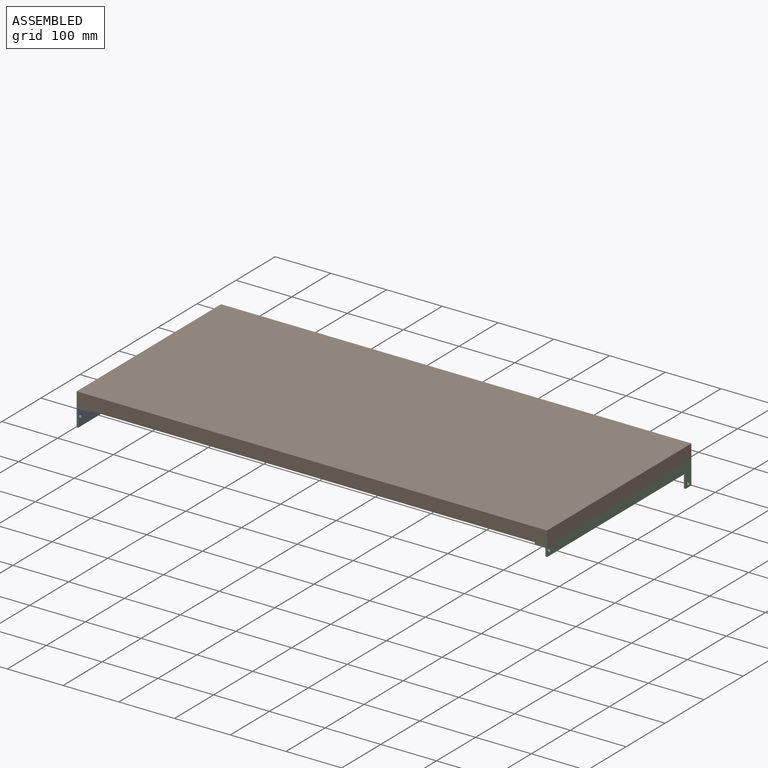
[diagram: assembled view]
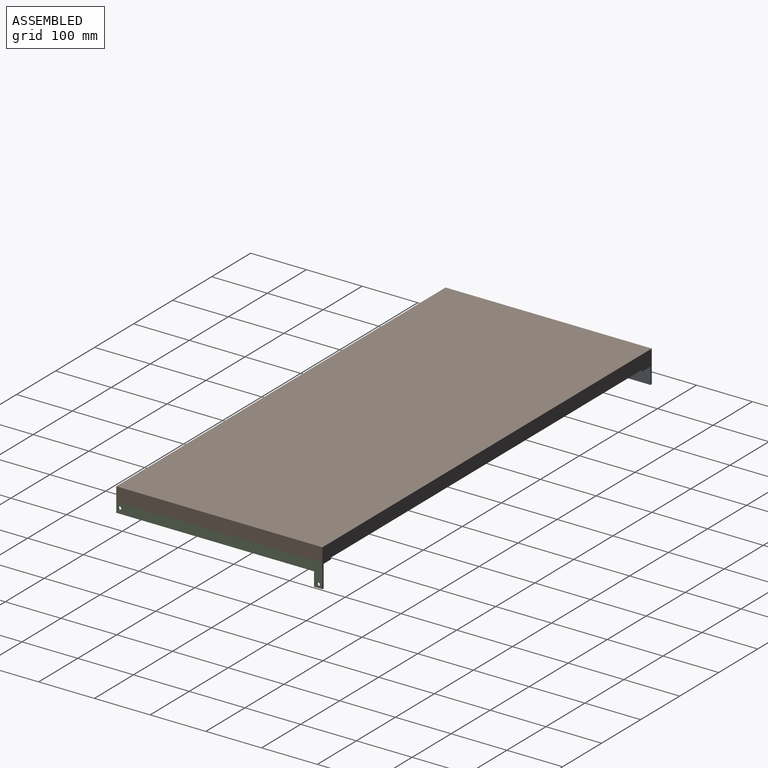
[diagram: assembled view, second angle]
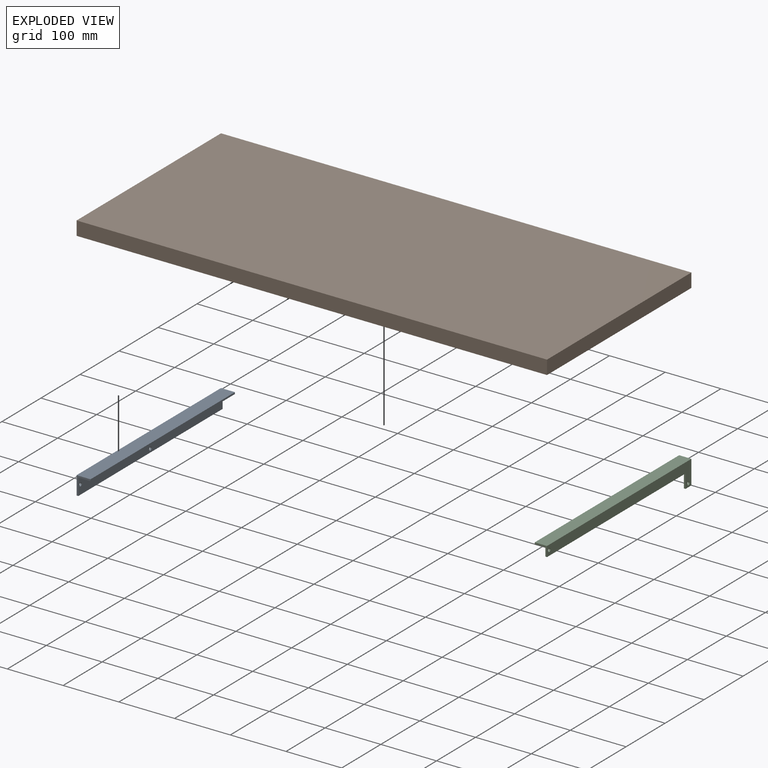
[diagram: exploded view]
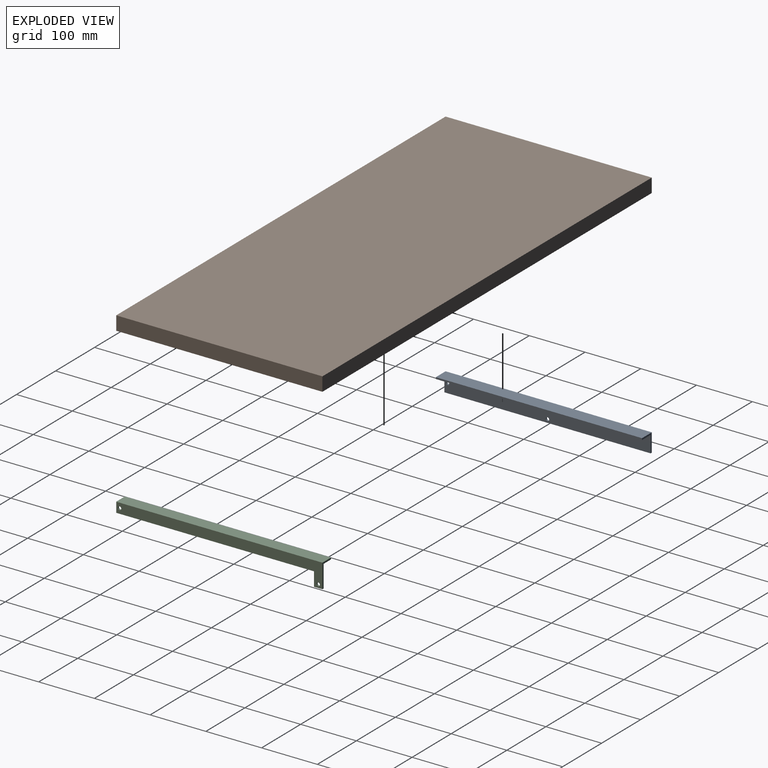
[diagram: exploded view, second angle]
ASSEMBLY  parts=3 mates=2
PART A: 10 faces, bbox 370x25x33 mm
  f0: plane 33x25mm, normal (-1,0,0), area 165mm2, adj f1,f3,f4,f5,f6,f7
  f1: plane 370x3mm, normal (0,0,-1), area 1110mm2, adj f0,f2,f3,f4
  f2: plane 33x25mm, normal (1,0,0), area 165mm2, adj f1,f3,f4,f5,f6,f7
  f3: plane 370x33mm, normal (0,-1,0), area 12153.5mm2, adj f0,f1,f2,f6,f8,f9
  f4: plane 370x30mm, normal (0,1,0), area 11043.5mm2, adj f0,f1,f2,f7,f8,f9
  f5: plane 370x3mm, normal (0,1,0), area 1110mm2, adj f0,f2,f6,f7
  f6: plane 370x25mm, normal (0,0,1), area 9250mm2, adj f0,f2,f3,f5
  f7: plane 370x22mm, normal (0,0,-1), area 8140mm2, adj f0,f2,f4,f5
  f8: cylinder r=3mm len=6mm, axis (0,-1,0), area 56.5mm2, adj f3,f4
  f9: cylinder r=3mm len=6mm, axis (0,-1,0), area 56.5mm2, adj f3,f4
PART B: 6 faces, bbox 844x370x25 mm
  f0: plane 370x25mm, normal (-1,0,0), area 9250mm2, adj f1,f3,f4,f5
  f1: plane 844x25mm, normal (0,-1,0), area 21100mm2, adj f0,f2,f4,f5
  f2: plane 370x25mm, normal (1,0,0), area 9250mm2, adj f1,f3,f4,f5
  f3: plane 844x25mm, normal (0,1,0), area 21100mm2, adj f0,f2,f4,f5
  f4: plane 844x370mm, normal (0,0,1), area 312280mm2, adj f0,f1,f2,f3
  f5: plane 844x370mm, normal (0,0,-1), area 312280mm2, adj f0,f1,f2,f3
PART C: 12 faces, bbox 370x22x43 mm
  f0: plane 43x22mm, normal (-1,0,0), area 186mm2, adj f5,f6,f8,f9,f10,f11
  f1: plane 25x3mm, normal (1,0,0), area 75mm2, adj f2,f5,f6,f11
  f2: plane 355x3mm, normal (0,0,-1), area 1065mm2, adj f1,f5,f7,f11
  f3: cylinder r=3mm len=6mm, axis (0,-1,0), area 56.5mm2, adj f5,f11
  f4: cylinder r=3mm len=6mm, axis (0,-1,0), area 56.5mm2, adj f5,f11
  f5: plane 370x40mm, normal (0,-1,0), area 5868.5mm2, adj f0,f1,f2,f3,f4,f6,f7,f10
  f6: plane 15x3mm, normal (0,0,-1), area 45mm2, adj f0,f1,f5,f11
  f7: plane 22x18mm, normal (1,0,0), area 111mm2, adj f2,f5,f8,f9,f10,f11
  f8: plane 370x22mm, normal (0,0,1), area 8140mm2, adj f0,f7,f9,f11
  f9: plane 370x3mm, normal (0,-1,0), area 1110mm2, adj f0,f7,f8,f10
  f10: plane 370x19mm, normal (0,0,-1), area 7030mm2, adj f0,f5,f7,f9
  f11: plane 370x43mm, normal (0,1,0), area 6978.5mm2, adj f0,f1,f2,f3,f4,f6,f7,f8
PLACE A rot(axis=(0,0,-1),90deg) t=(-342.5,198.07,-89.55)mm
PLACE B t=(-345.5,-171.93,-56.55)mm
PLACE C rot(axis=(0,0,-1),90deg) t=(498.5,198.07,-99.55)mm
MATE fastened A.f6 <-> B.f5  axis (0,0,1) through (-345.5,13.07,-56.55)mm
MATE fastened C.f8 <-> B.f5  axis (0,0,1) through (498.5,13.07,-56.55)mm
